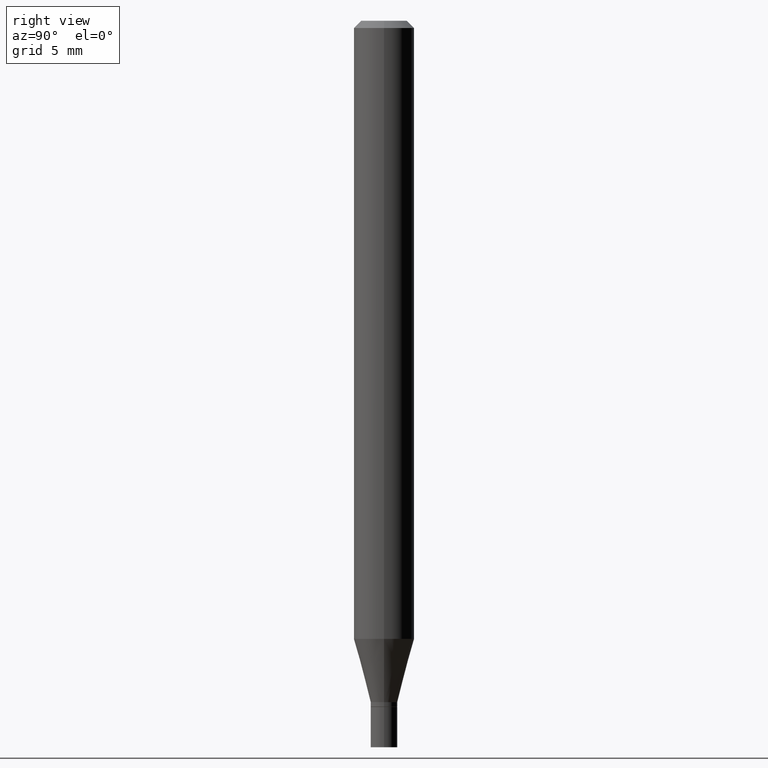
[diagram: clean part render]
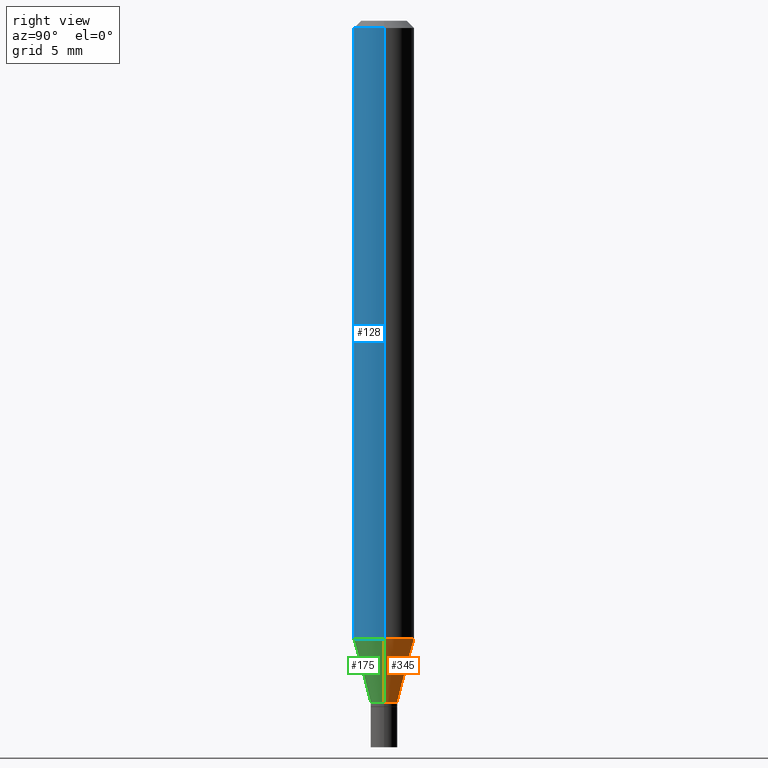
[diagram: same view with three faces highlighted in distinct colors, each labeled with its STEP entity id]
A machine part, right view with three faces highlighted in distinct colors.
Their STEP definitions:

[orange] entity #345 — the highlighted conical surface has half-angle 15 deg.
#2 = CARTESIAN_POINT ( 'NONE',  ( -0.02749999999999992381, -4.717114991418278561E-15, -1.407000000000000028 ) ) ;
#9 = EDGE_CURVE ( 'NONE', #254, #135, #141, .T. ) ;
#12 = VECTOR ( 'NONE', #151, 39.37007874015748854 ) ;
#37 = EDGE_CURVE ( 'NONE', #169, #135, #464, .T. ) ;
#40 = ORIENTED_EDGE ( 'NONE', *, *, #155, .F. ) ;
#45 = AXIS2_PLACEMENT_3D ( 'NONE', #212, #362, #110 ) ;
#67 = CARTESIAN_POINT ( 'NONE',  ( -0.06250000000000000000, -4.012361532643800373E-15, -1.276378221735089191 ) ) ;
#71 = DIRECTION ( 'NONE',  ( 1.000000000000000000, -6.982962677686262766E-15, 0.000000000000000000 ) ) ;
#110 = DIRECTION ( 'NONE',  ( 1.000000000000000000, -6.982962677686264344E-15, 0.000000000000000000 ) ) ;
#133 = CARTESIAN_POINT ( 'NONE',  ( -0.02749999999999992381, -4.364738262031039467E-15, -1.407000000000000028 ) ) ;
#135 = VERTEX_POINT ( 'NONE', #67 ) ;
#139 = ORIENTED_EDGE ( 'NONE', *, *, #216, .T. ) ;
#141 = LINE ( 'NONE', #2, #12 ) ;
#151 = DIRECTION ( 'NONE',  ( -0.2588190451025211836, 5.211531920934547886E-15, 0.9659258262890679791 ) ) ;
#155 = EDGE_CURVE ( 'NONE', #448, #169, #210, .T. ) ;
#169 = VERTEX_POINT ( 'NONE', #300 ) ;
#184 = CARTESIAN_POINT ( 'NONE',  ( 0.02749999999999992381, -5.104545717388677595E-15, -1.407000000000000028 ) ) ;
#186 = AXIS2_PLACEMENT_3D ( 'NONE', #403, #445, #222 ) ;
#203 = EDGE_LOOP ( 'NONE', ( #139, #368, #400, #40 ) ) ;
#204 = CARTESIAN_POINT ( 'NONE',  ( 0.02749999999999992381, -5.104545717388677595E-15, -1.407000000000000028 ) ) ;
#210 = LINE ( 'NONE', #204, #338 ) ;
#212 = CARTESIAN_POINT ( 'NONE',  ( 3.440774610302487541E-29, -4.912514243752305891E-15, -1.407000000000000028 ) ) ;
#216 = EDGE_CURVE ( 'NONE', #448, #254, #459, .T. ) ;
#222 = DIRECTION ( 'NONE',  ( 1.000000000000000000, -6.982962677686264344E-15, 0.000000000000000000 ) ) ;
#254 = VERTEX_POINT ( 'NONE', #133 ) ;
#300 = CARTESIAN_POINT ( 'NONE',  ( 0.06250000000000000000, -4.892885909849253869E-15, -1.276378221735089191 ) ) ;
#318 = CARTESIAN_POINT ( 'NONE',  ( 3.121343126147216343E-29, -4.456450742493863778E-15, -1.276378221735089191 ) ) ;
#322 = AXIS2_PLACEMENT_3D ( 'NONE', #318, #404, #71 ) ;
#338 = VECTOR ( 'NONE', #426, 39.37007874015748854 ) ;
#345 = ADVANCED_FACE ( 'NONE', ( #372 ), #364, .T. ) ;
#362 = DIRECTION ( 'NONE',  ( -2.445468806185136597E-29, 3.491481338843145583E-15, 1.000000000000000000 ) ) ;
#364 = CONICAL_SURFACE ( 'NONE', #45, 0.02749999999999992381, 0.2617993877991499074 ) ;
#368 = ORIENTED_EDGE ( 'NONE', *, *, #9, .T. ) ;
#372 = FACE_OUTER_BOUND ( 'NONE', #203, .T. ) ;
#400 = ORIENTED_EDGE ( 'NONE', *, *, #37, .F. ) ;
#403 = CARTESIAN_POINT ( 'NONE',  ( 3.440774610302487541E-29, -4.912514243752305891E-15, -1.407000000000000028 ) ) ;
#404 = DIRECTION ( 'NONE',  ( -2.445468806185136597E-29, 3.491481338843145583E-15, 1.000000000000000000 ) ) ;
#426 = DIRECTION ( 'NONE',  ( 0.2588190451025211836, 1.565188264969622559E-15, 0.9659258262890679791 ) ) ;
#445 = DIRECTION ( 'NONE',  ( -2.445468806185136597E-29, 3.491481338843145583E-15, 1.000000000000000000 ) ) ;
#448 = VERTEX_POINT ( 'NONE', #184 ) ;
#459 = CIRCLE ( 'NONE', #186, 0.02749999999999992381 ) ;
#464 = CIRCLE ( 'NONE', #322, 0.06250000000000000000 ) ;

[blue] entity #128 — the highlighted cylindrical surface (edge-blend (fillet) strip) has radius 1.5875 mm, axis along (-0, 0, 1).
#14 = VECTOR ( 'NONE', #29, 39.37007874015748143 ) ;
#18 = EDGE_LOOP ( 'NONE', ( #278, #317, #411, #250 ) ) ;
#29 = DIRECTION ( 'NONE',  ( -2.445468806185136877E-29, 3.491481338843145188E-15, 1.000000000000000000 ) ) ;
#32 = EDGE_CURVE ( 'NONE', #169, #195, #237, .T. ) ;
#67 = CARTESIAN_POINT ( 'NONE',  ( -0.06250000000000000000, -4.012361532643800373E-15, -1.276378221735089191 ) ) ;
#72 = AXIS2_PLACEMENT_3D ( 'NONE', #118, #82, #231 ) ;
#74 = CARTESIAN_POINT ( 'NONE',  ( -0.06250000000000000000, -1.810322271438192615E-15, -0.01499999999999999944 ) ) ;
#76 = CARTESIAN_POINT ( 'NONE',  ( 0.06250000000000000000, -4.888073874380388472E-16, -0.01499999999999999944 ) ) ;
#82 = DIRECTION ( 'NONE',  ( -2.445468806185136597E-29, 3.491481338843145583E-15, 1.000000000000000000 ) ) ;
#83 = DIRECTION ( 'NONE',  ( 1.000000000000000000, -6.982962677686266711E-15, 0.000000000000000000 ) ) ;
#84 = EDGE_CURVE ( 'NONE', #223, #195, #150, .T. ) ;
#97 = AXIS2_PLACEMENT_3D ( 'NONE', #146, #284, #243 ) ;
#118 = CARTESIAN_POINT ( 'NONE',  ( 0.000000000000000000, 0.000000000000000000, 0.000000000000000000 ) ) ;
#128 = ADVANCED_FACE ( 'NONE', ( #218 ), #295, .T. ) ;
#135 = VERTEX_POINT ( 'NONE', #67 ) ;
#146 = CARTESIAN_POINT ( 'NONE',  ( 3.121343126147216343E-29, -4.456450742493863778E-15, -1.276378221735089191 ) ) ;
#150 = CIRCLE ( 'NONE', #441, 0.06250000000000000000 ) ;
#169 = VERTEX_POINT ( 'NONE', #300 ) ;
#177 = DIRECTION ( 'NONE',  ( -2.445468806185136877E-29, 3.491481338843145188E-15, 1.000000000000000000 ) ) ;
#180 = EDGE_CURVE ( 'NONE', #135, #223, #235, .T. ) ;
#194 = VECTOR ( 'NONE', #177, 39.37007874015748143 ) ;
#195 = VERTEX_POINT ( 'NONE', #76 ) ;
#218 = FACE_OUTER_BOUND ( 'NONE', #18, .T. ) ;
#223 = VERTEX_POINT ( 'NONE', #74 ) ;
#231 = DIRECTION ( 'NONE',  ( 1.000000000000000000, -6.982962677686266711E-15, 4.876176775795935793E-29 ) ) ;
#235 = LINE ( 'NONE', #285, #194 ) ;
#237 = LINE ( 'NONE', #348, #14 ) ;
#238 = CIRCLE ( 'NONE', #97, 0.06250000000000000000 ) ;
#243 = DIRECTION ( 'NONE',  ( 1.000000000000000000, -6.982962677686262766E-15, 0.000000000000000000 ) ) ;
#250 = ORIENTED_EDGE ( 'NONE', *, *, #84, .F. ) ;
#264 = CARTESIAN_POINT ( 'NONE',  ( 3.668203209277705088E-31, -5.237222008264718399E-17, -0.01499999999999999944 ) ) ;
#276 = EDGE_CURVE ( 'NONE', #135, #169, #238, .T. ) ;
#278 = ORIENTED_EDGE ( 'NONE', *, *, #180, .F. ) ;
#284 = DIRECTION ( 'NONE',  ( -2.445468806185136597E-29, 3.491481338843145583E-15, 1.000000000000000000 ) ) ;
#285 = CARTESIAN_POINT ( 'NONE',  ( -0.06250000000000000000, 4.440892098500626162E-16, -3.074334431409316114E-30 ) ) ;
#295 = CYLINDRICAL_SURFACE ( 'NONE', #72, 0.06250000000000000000 ) ;
#300 = CARTESIAN_POINT ( 'NONE',  ( 0.06250000000000000000, -4.892885909849253869E-15, -1.276378221735089191 ) ) ;
#317 = ORIENTED_EDGE ( 'NONE', *, *, #276, .T. ) ;
#348 = CARTESIAN_POINT ( 'NONE',  ( 0.06250000000000000000, -4.364351673553916694E-16, 3.047610484872459871E-30 ) ) ;
#411 = ORIENTED_EDGE ( 'NONE', *, *, #32, .T. ) ;
#441 = AXIS2_PLACEMENT_3D ( 'NONE', #264, #454, #83 ) ;
#454 = DIRECTION ( 'NONE',  ( -2.445468806185136597E-29, 3.491481338843145583E-15, 1.000000000000000000 ) ) ;

[green] entity #175 — the highlighted conical surface has half-angle 15 deg.
#2 = CARTESIAN_POINT ( 'NONE',  ( -0.02749999999999992381, -4.717114991418278561E-15, -1.407000000000000028 ) ) ;
#9 = EDGE_CURVE ( 'NONE', #254, #135, #141, .T. ) ;
#12 = VECTOR ( 'NONE', #151, 39.37007874015748854 ) ;
#19 = AXIS2_PLACEMENT_3D ( 'NONE', #208, #90, #394 ) ;
#48 = EDGE_CURVE ( 'NONE', #254, #448, #443, .T. ) ;
#67 = CARTESIAN_POINT ( 'NONE',  ( -0.06250000000000000000, -4.012361532643800373E-15, -1.276378221735089191 ) ) ;
#90 = DIRECTION ( 'NONE',  ( -2.445468806185136597E-29, 3.491481338843145583E-15, 1.000000000000000000 ) ) ;
#97 = AXIS2_PLACEMENT_3D ( 'NONE', #146, #284, #243 ) ;
#98 = CARTESIAN_POINT ( 'NONE',  ( 3.440774610302487541E-29, -4.912514243752305891E-15, -1.407000000000000028 ) ) ;
#132 = DIRECTION ( 'NONE',  ( -2.445468806185136597E-29, 3.491481338843145583E-15, 1.000000000000000000 ) ) ;
#133 = CARTESIAN_POINT ( 'NONE',  ( -0.02749999999999992381, -4.364738262031039467E-15, -1.407000000000000028 ) ) ;
#135 = VERTEX_POINT ( 'NONE', #67 ) ;
#141 = LINE ( 'NONE', #2, #12 ) ;
#146 = CARTESIAN_POINT ( 'NONE',  ( 3.121343126147216343E-29, -4.456450742493863778E-15, -1.276378221735089191 ) ) ;
#151 = DIRECTION ( 'NONE',  ( -0.2588190451025211836, 5.211531920934547886E-15, 0.9659258262890679791 ) ) ;
#155 = EDGE_CURVE ( 'NONE', #448, #169, #210, .T. ) ;
#169 = VERTEX_POINT ( 'NONE', #300 ) ;
#175 = ADVANCED_FACE ( 'NONE', ( #402 ), #247, .T. ) ;
#184 = CARTESIAN_POINT ( 'NONE',  ( 0.02749999999999992381, -5.104545717388677595E-15, -1.407000000000000028 ) ) ;
#204 = CARTESIAN_POINT ( 'NONE',  ( 0.02749999999999992381, -5.104545717388677595E-15, -1.407000000000000028 ) ) ;
#208 = CARTESIAN_POINT ( 'NONE',  ( 3.440774610302487541E-29, -4.912514243752305891E-15, -1.407000000000000028 ) ) ;
#210 = LINE ( 'NONE', #204, #338 ) ;
#238 = CIRCLE ( 'NONE', #97, 0.06250000000000000000 ) ;
#243 = DIRECTION ( 'NONE',  ( 1.000000000000000000, -6.982962677686262766E-15, 0.000000000000000000 ) ) ;
#247 = CONICAL_SURFACE ( 'NONE', #19, 0.02749999999999992381, 0.2617993877991499074 ) ;
#254 = VERTEX_POINT ( 'NONE', #133 ) ;
#272 = AXIS2_PLACEMENT_3D ( 'NONE', #98, #132, #356 ) ;
#276 = EDGE_CURVE ( 'NONE', #135, #169, #238, .T. ) ;
#284 = DIRECTION ( 'NONE',  ( -2.445468806185136597E-29, 3.491481338843145583E-15, 1.000000000000000000 ) ) ;
#300 = CARTESIAN_POINT ( 'NONE',  ( 0.06250000000000000000, -4.892885909849253869E-15, -1.276378221735089191 ) ) ;
#326 = ORIENTED_EDGE ( 'NONE', *, *, #9, .F. ) ;
#332 = ORIENTED_EDGE ( 'NONE', *, *, #276, .F. ) ;
#335 = EDGE_LOOP ( 'NONE', ( #326, #363, #422, #332 ) ) ;
#338 = VECTOR ( 'NONE', #426, 39.37007874015748854 ) ;
#356 = DIRECTION ( 'NONE',  ( 1.000000000000000000, -6.982962677686264344E-15, 0.000000000000000000 ) ) ;
#363 = ORIENTED_EDGE ( 'NONE', *, *, #48, .T. ) ;
#394 = DIRECTION ( 'NONE',  ( 1.000000000000000000, -6.982962677686264344E-15, 0.000000000000000000 ) ) ;
#402 = FACE_OUTER_BOUND ( 'NONE', #335, .T. ) ;
#422 = ORIENTED_EDGE ( 'NONE', *, *, #155, .T. ) ;
#426 = DIRECTION ( 'NONE',  ( 0.2588190451025211836, 1.565188264969622559E-15, 0.9659258262890679791 ) ) ;
#443 = CIRCLE ( 'NONE', #272, 0.02749999999999992381 ) ;
#448 = VERTEX_POINT ( 'NONE', #184 ) ;